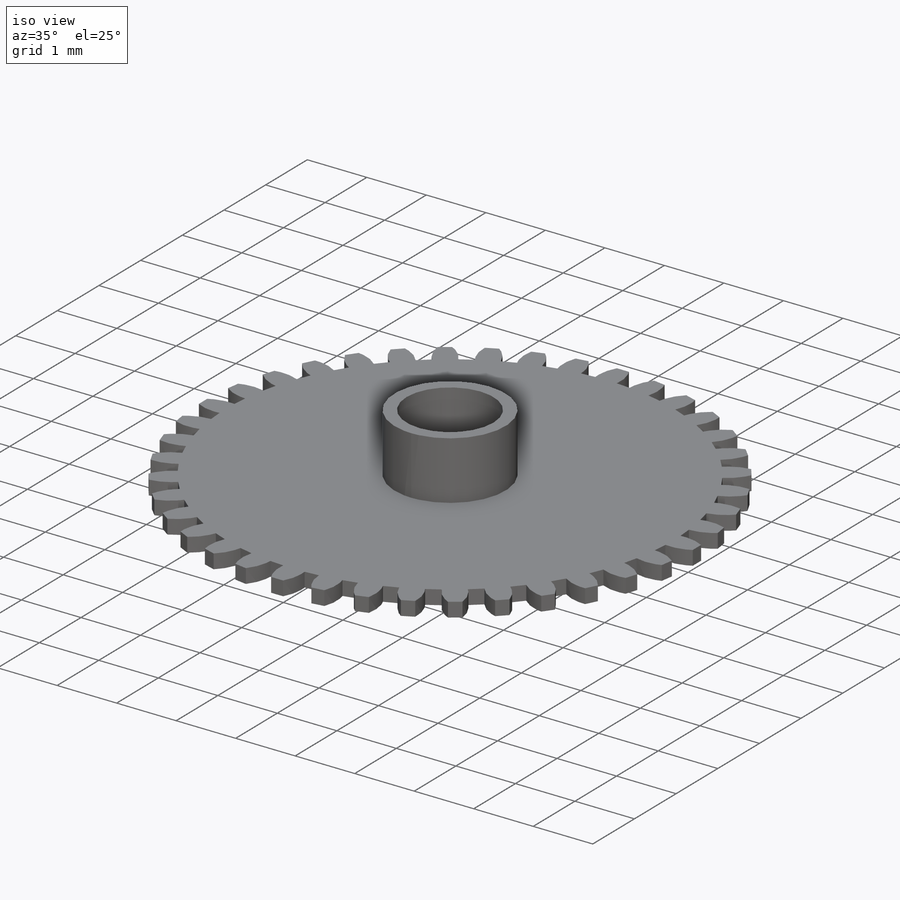
[diagram: iso view]
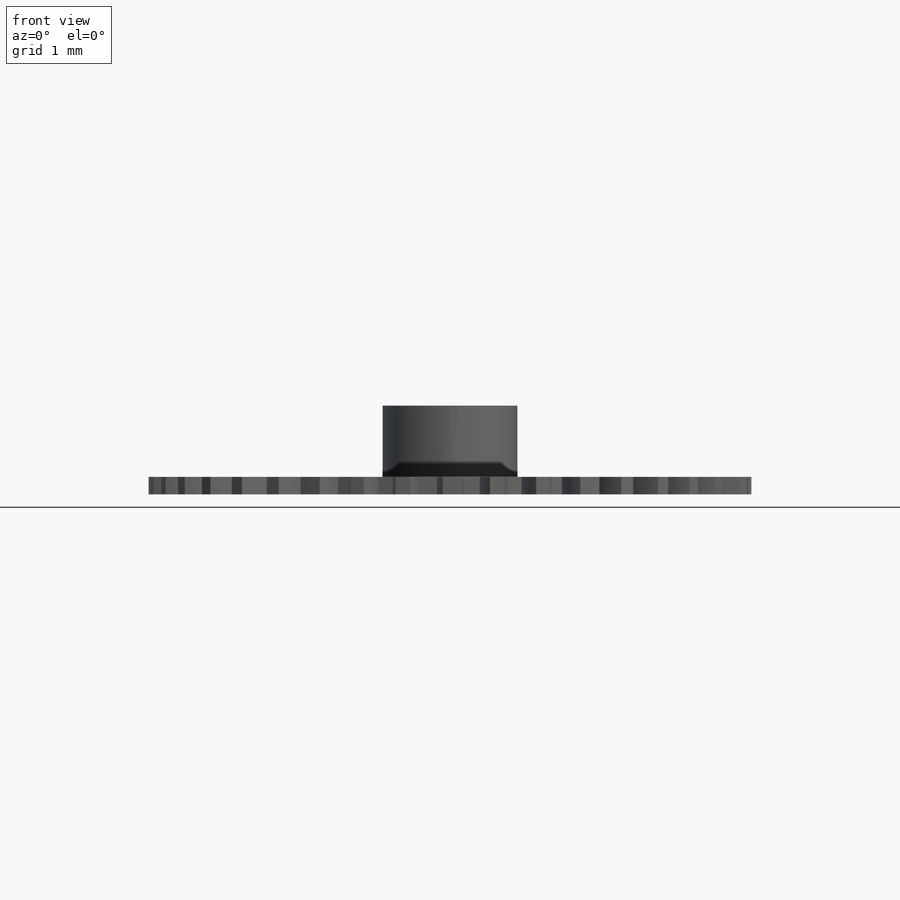
[diagram: front view]
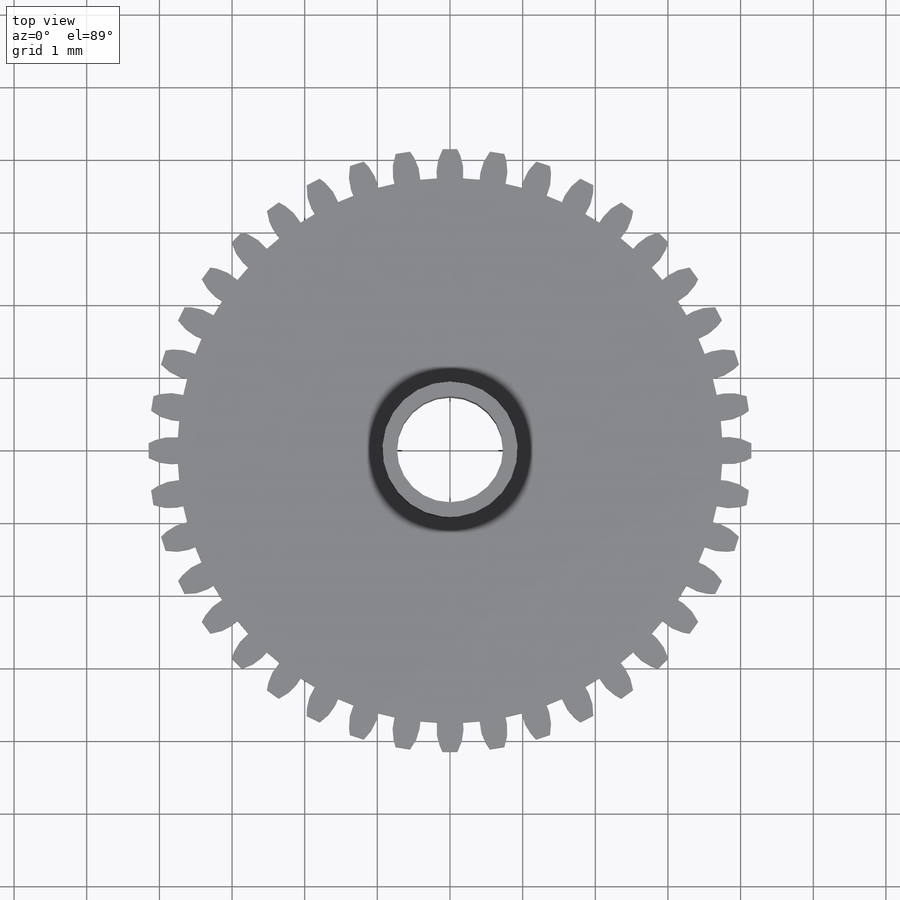
[diagram: top view]
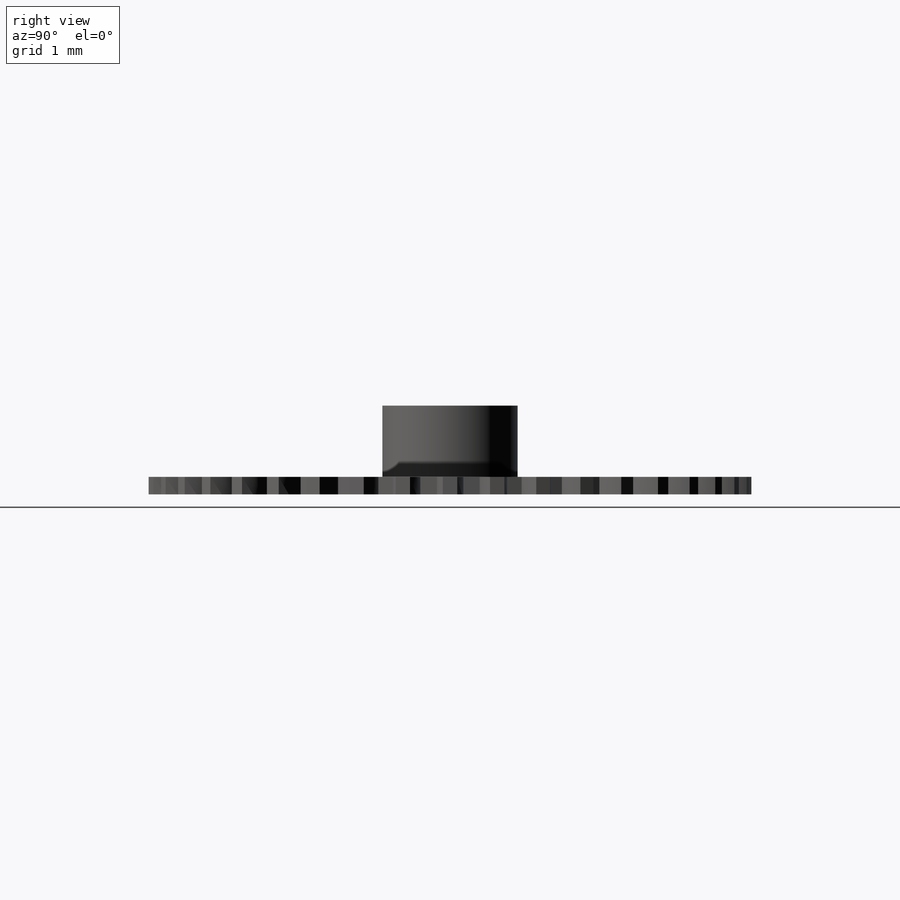
[diagram: right view]
SOLIDWORKS PART (.sldprt)
format: sldprt  version: not decoded by parser v0  size: 385,536 bytes
history: native  units: mm
features: sketch x4, extrude x3, material x1, pattern_circular x1, cut_extrude x1 (+11 scaffold rows collapsed)
feature tree (21):
  scaffold x11  (default folders/planes/origin — collapsed)
  material  "Material <not specified>"
  sketch  "Sketch2"  dims[D1=7.5mm]
  extrude  "Boss-Extrude1"  Depth=0.24mm
  sketch  "Sketch1"  dims[D1=8.3mm D2=7.5mm D3=0.18mm D4=0.1mm]
  extrude  "Boss-Extrude2"  Depth=0.24mm
  pattern_circular  "CirPattern1"  Count=40 Angle=360deg
  sketch  "Sketch3"  dims[D1=1.86mm]
  extrude  "Boss-Extrude3"  Depth=0.98mm
  sketch  "Sketch4"  dims[D1=1.46mm]
  cut_extrude  "Cut-Extrude1"  [1 undecoded]
decode coverage: 8 of 9 modeling features carry decoded parameters
note: 1 parameter value undecoded
note: suppression state not decoded; provenance and decode notes live in map.json
